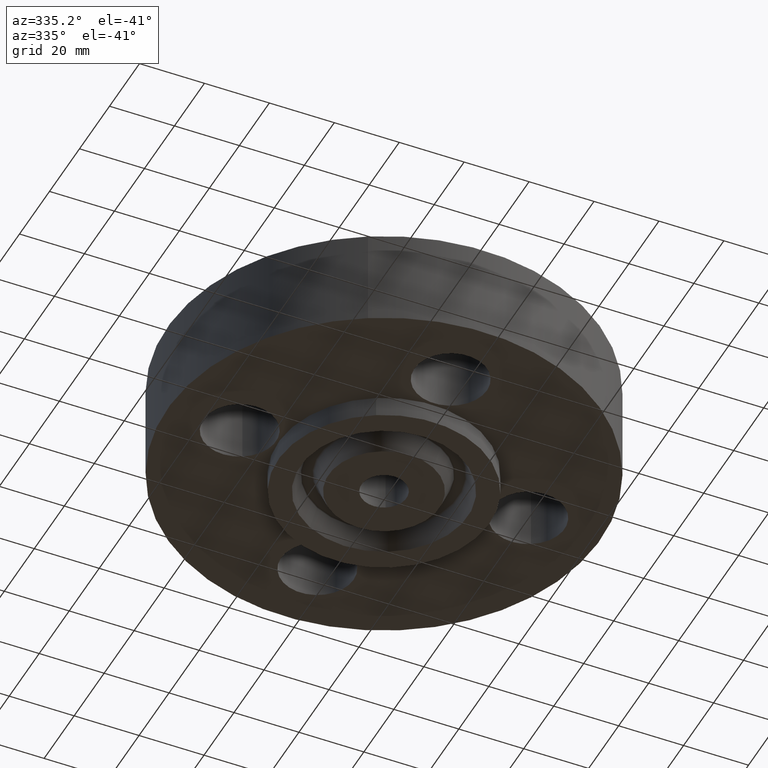
[diagram: clean part render]
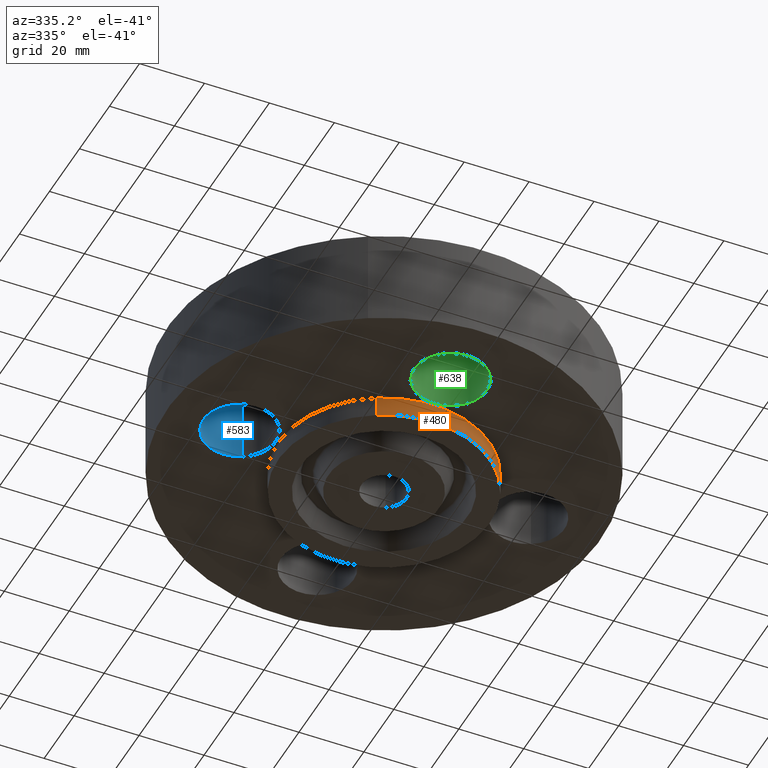
[diagram: same view with three faces highlighted in distinct colors, each labeled with its STEP entity id]
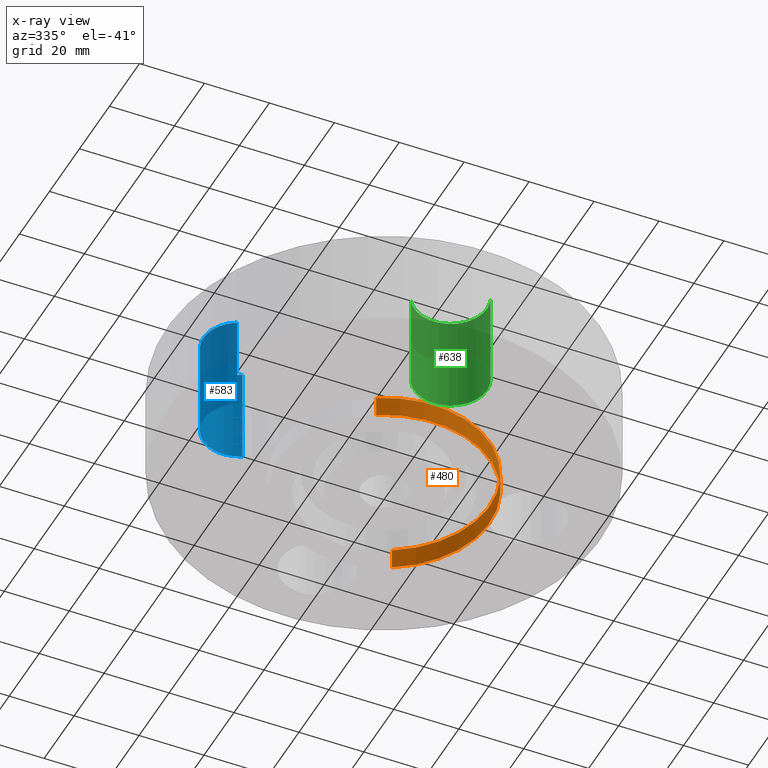
[diagram: x-ray of the same camera — body ghosted, the three highlighted faces saturated]
A machine part, auxiliary view with three faces highlighted in distinct colors.
The next image is the same camera in x-ray (body ghosted, the three faces saturated) — at least one of them is partly hidden behind the body in this view.
Their STEP definitions:

[orange] entity #480 — the highlighted cylindrical surface (partial cylindrical patch) has radius 32.5501 mm, axis along (0, 0, -1).
#427=AXIS2_PLACEMENT_3D('Cylinder Axis2P3D',#424,#425,#426) ;
#466=AXIS2_PLACEMENT_3D('Circle Axis2P3D',#464,#465,$) ;
#471=AXIS2_PLACEMENT_3D('Circle Axis2P3D',#469,#470,$) ;
#424=CARTESIAN_POINT('Axis2P3D Location',(0.,0.,1.31500000001)) ;
#433=CARTESIAN_POINT('Vertex',(-0.614383827724,-1.12462205307,-0.250000000001)) ;
#435=CARTESIAN_POINT('Vertex',(0.614383827724,1.12462205307,-0.250000000001)) ;
#438=CARTESIAN_POINT('Line Origine',(-0.614383827724,-1.12462205307,-0.125000000001)) ;
#442=CARTESIAN_POINT('Vertex',(-0.614383827724,-1.12462205307,0.)) ;
#449=CARTESIAN_POINT('Vertex',(0.614383827724,1.12462205307,0.)) ;
#452=CARTESIAN_POINT('Line Origine',(0.614383827724,1.12462205307,-0.125000000001)) ;
#464=CARTESIAN_POINT('Axis2P3D Location',(0.,0.,-0.250000000001)) ;
#469=CARTESIAN_POINT('Axis2P3D Location',(0.,0.,0.)) ;
#425=DIRECTION('Axis2P3D Direction',(0.,0.,-0.0393700787402)) ;
#426=DIRECTION('Axis2P3D XDirection',(0.0188750212049,0.0345504945626,0.)) ;
#439=DIRECTION('Vector Direction',(0.,0.,-0.0393700787402)) ;
#453=DIRECTION('Vector Direction',(0.,0.,-0.0393700787402)) ;
#465=DIRECTION('Axis2P3D Direction',(0.,0.,-0.0393700787402)) ;
#470=DIRECTION('Axis2P3D Direction',(0.,0.,-0.0393700787402)) ;
#440=VECTOR('Line Direction',#439,0.0393700787402) ;
#454=VECTOR('Line Direction',#453,0.0393700787402) ;
#475=ORIENTED_EDGE('',*,*,#468,.F.) ;
#476=ORIENTED_EDGE('',*,*,#456,.T.) ;
#477=ORIENTED_EDGE('',*,*,#473,.T.) ;
#478=ORIENTED_EDGE('',*,*,#444,.F.) ;
#480=ADVANCED_FACE('PartBody',(#479),#428,.T.) ;
#467=CIRCLE('generated circle',#466,1.28150000001) ;
#472=CIRCLE('generated circle',#471,1.28150000001) ;
#428=CYLINDRICAL_SURFACE('generated cylinder',#427,1.28150000001) ;
#444=EDGE_CURVE('',#434,#443,#441,.F.) ;
#456=EDGE_CURVE('',#436,#450,#455,.F.) ;
#468=EDGE_CURVE('',#436,#434,#467,.T.) ;
#473=EDGE_CURVE('',#450,#443,#472,.T.) ;
#474=EDGE_LOOP('',(#475,#476,#477,#478)) ;
#479=FACE_OUTER_BOUND('',#474,.T.) ;
#441=LINE('Line',#438,#440) ;
#455=LINE('Line',#452,#454) ;
#434=VERTEX_POINT('',#433) ;
#436=VERTEX_POINT('',#435) ;
#443=VERTEX_POINT('',#442) ;
#450=VERTEX_POINT('',#449) ;

[blue] entity #583 — the highlighted cylindrical surface (partial cylindrical patch) has radius 11.176 mm, axis along (0, 0, -1).
#536=AXIS2_PLACEMENT_3D('Circle Axis2P3D',#534,#535,$) ;
#556=AXIS2_PLACEMENT_3D('Cylinder Axis2P3D',#553,#554,#555) ;
#574=AXIS2_PLACEMENT_3D('Circle Axis2P3D',#572,#573,$) ;
#534=CARTESIAN_POINT('Axis2P3D Location',(-1.75000000001,-2.79741234551E-016,0.)) ;
#538=CARTESIAN_POINT('Vertex',(-1.96094723699,-0.386136327233,0.)) ;
#540=CARTESIAN_POINT('Vertex',(-1.53905276302,0.386136327233,0.)) ;
#553=CARTESIAN_POINT('Axis2P3D Location',(-1.75000000001,-3.21469784777E-016,1.18606299213)) ;
#558=CARTESIAN_POINT('Line Origine',(-1.96094723699,-0.386136327233,0.595000000002)) ;
#562=CARTESIAN_POINT('Vertex',(-1.96094723699,-0.386136327233,1.19)) ;
#565=CARTESIAN_POINT('Line Origine',(-1.53905276302,0.386136327233,0.595000000002)) ;
#569=CARTESIAN_POINT('Vertex',(-1.53905276302,0.386136327233,1.19)) ;
#572=CARTESIAN_POINT('Axis2P3D Location',(-1.75000000001,-3.21469784777E-016,1.19)) ;
#535=DIRECTION('Axis2P3D Direction',(0.,0.,-0.0393700787402)) ;
#554=DIRECTION('Axis2P3D Direction',(0.,0.,-0.0393700787402)) ;
#555=DIRECTION('Axis2P3D XDirection',(0.0188750212049,0.0345504945626,0.)) ;
#559=DIRECTION('Vector Direction',(0.,0.,-0.0393700787402)) ;
#566=DIRECTION('Vector Direction',(0.,0.,-0.0393700787402)) ;
#573=DIRECTION('Axis2P3D Direction',(0.,0.,-0.0393700787402)) ;
#560=VECTOR('Line Direction',#559,0.0393700787402) ;
#567=VECTOR('Line Direction',#566,0.0393700787402) ;
#578=ORIENTED_EDGE('',*,*,#564,.F.) ;
#579=ORIENTED_EDGE('',*,*,#542,.T.) ;
#580=ORIENTED_EDGE('',*,*,#571,.T.) ;
#581=ORIENTED_EDGE('',*,*,#576,.F.) ;
#583=ADVANCED_FACE('PartBody',(#582),#557,.F.) ;
#537=CIRCLE('generated circle',#536,0.440000000002) ;
#575=CIRCLE('generated circle',#574,0.440000000002) ;
#557=CYLINDRICAL_SURFACE('generated cylinder',#556,0.440000000002) ;
#542=EDGE_CURVE('',#539,#541,#537,.T.) ;
#564=EDGE_CURVE('',#539,#563,#561,.F.) ;
#571=EDGE_CURVE('',#541,#570,#568,.F.) ;
#576=EDGE_CURVE('',#563,#570,#575,.T.) ;
#577=EDGE_LOOP('',(#578,#579,#580,#581)) ;
#582=FACE_OUTER_BOUND('',#577,.T.) ;
#561=LINE('Line',#558,#560) ;
#568=LINE('Line',#565,#567) ;
#539=VERTEX_POINT('',#538) ;
#541=VERTEX_POINT('',#540) ;
#563=VERTEX_POINT('',#562) ;
#570=VERTEX_POINT('',#569) ;

[green] entity #638 — the highlighted cylindrical surface (partial cylindrical patch) has radius 11.176 mm, axis along (-0, 0, -1).
#527=AXIS2_PLACEMENT_3D('Circle Axis2P3D',#525,#526,$) ;
#599=AXIS2_PLACEMENT_3D('Cylinder Axis2P3D',#596,#597,#598) ;
#629=AXIS2_PLACEMENT_3D('Circle Axis2P3D',#627,#628,$) ;
#520=CARTESIAN_POINT('Vertex',(0.386136327233,-1.96094723699,0.)) ;
#522=CARTESIAN_POINT('Vertex',(-0.386136327233,-1.53905276302,0.)) ;
#525=CARTESIAN_POINT('Axis2P3D Location',(2.44773580232E-016,-1.75000000001,0.)) ;
#596=CARTESIAN_POINT('Axis2P3D Location',(2.14313189852E-016,-1.75000000001,1.18606299213)) ;
#601=CARTESIAN_POINT('Line Origine',(0.386136327233,-1.96094723699,0.595000000002)) ;
#605=CARTESIAN_POINT('Vertex',(0.386136327233,-1.96094723699,1.19)) ;
#608=CARTESIAN_POINT('Line Origine',(-0.386136327233,-1.53905276302,0.595000000002)) ;
#612=CARTESIAN_POINT('Vertex',(-0.386136327233,-1.53905276302,1.19)) ;
#627=CARTESIAN_POINT('Axis2P3D Location',(2.14313189852E-016,-1.75000000001,1.19)) ;
#526=DIRECTION('Axis2P3D Direction',(0.,0.,-0.0393700787402)) ;
#597=DIRECTION('Axis2P3D Direction',(-0.,0.,-0.0393700787402)) ;
#598=DIRECTION('Axis2P3D XDirection',(-0.0345504945626,0.0188750212049,0.)) ;
#602=DIRECTION('Vector Direction',(0.,0.,-0.0393700787402)) ;
#609=DIRECTION('Vector Direction',(0.,0.,-0.0393700787402)) ;
#628=DIRECTION('Axis2P3D Direction',(-0.,0.,-0.0393700787402)) ;
#603=VECTOR('Line Direction',#602,0.0393700787402) ;
#610=VECTOR('Line Direction',#609,0.0393700787402) ;
#633=ORIENTED_EDGE('',*,*,#614,.F.) ;
#634=ORIENTED_EDGE('',*,*,#529,.T.) ;
#635=ORIENTED_EDGE('',*,*,#607,.T.) ;
#636=ORIENTED_EDGE('',*,*,#631,.F.) ;
#638=ADVANCED_FACE('PartBody',(#637),#600,.F.) ;
#528=CIRCLE('generated circle',#527,0.440000000002) ;
#630=CIRCLE('generated circle',#629,0.440000000002) ;
#600=CYLINDRICAL_SURFACE('generated cylinder',#599,0.440000000002) ;
#529=EDGE_CURVE('',#523,#521,#528,.T.) ;
#607=EDGE_CURVE('',#521,#606,#604,.F.) ;
#614=EDGE_CURVE('',#523,#613,#611,.F.) ;
#631=EDGE_CURVE('',#613,#606,#630,.T.) ;
#632=EDGE_LOOP('',(#633,#634,#635,#636)) ;
#637=FACE_OUTER_BOUND('',#632,.T.) ;
#604=LINE('Line',#601,#603) ;
#611=LINE('Line',#608,#610) ;
#521=VERTEX_POINT('',#520) ;
#523=VERTEX_POINT('',#522) ;
#606=VERTEX_POINT('',#605) ;
#613=VERTEX_POINT('',#612) ;